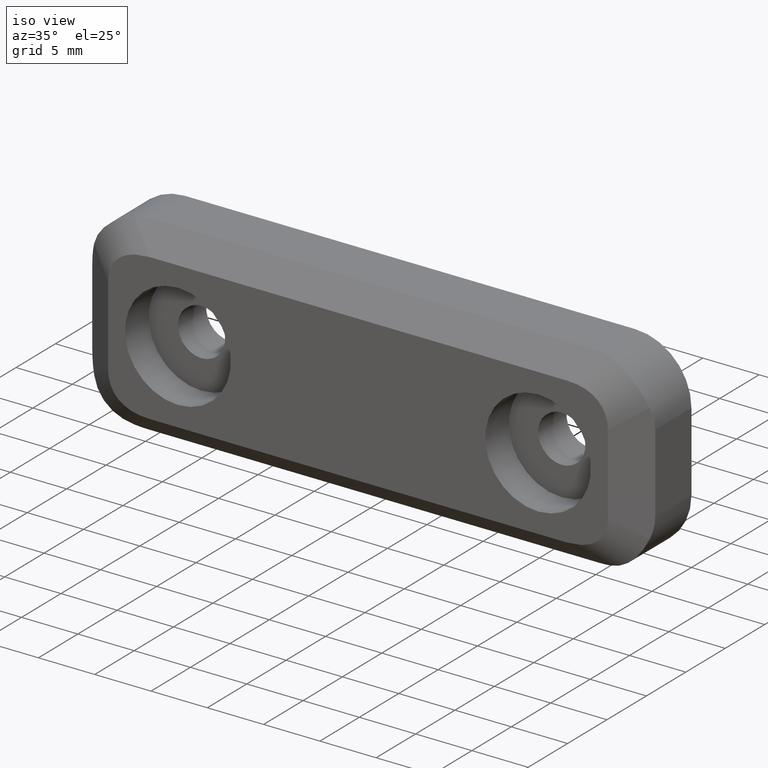
[diagram: clean part render]
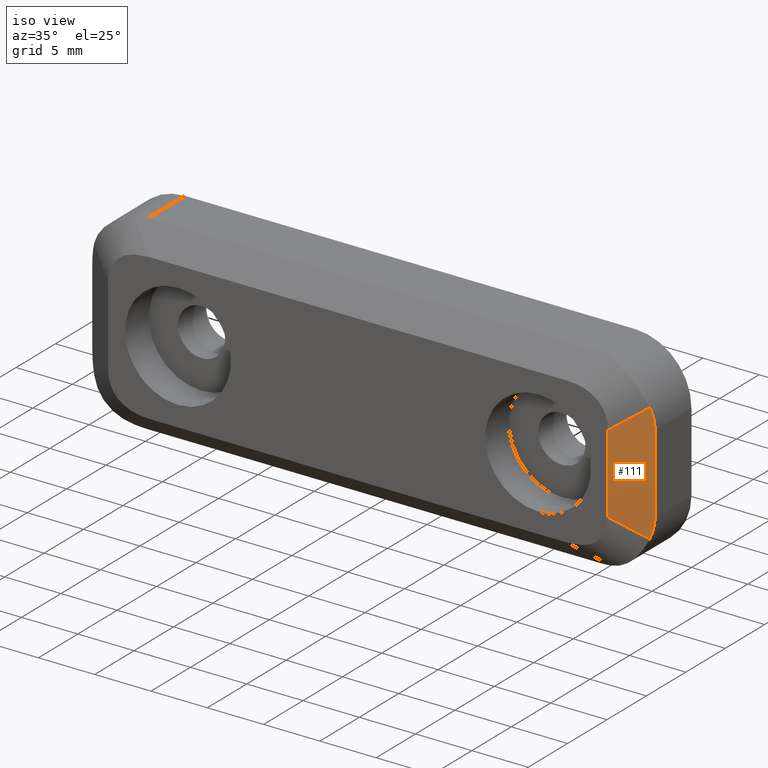
[diagram: same view with one face highlighted and labeled with its STEP entity id]
A machine part, iso view. The second image highlights one B-rep face of the part: STEP entity #111.
In plain terms, the highlighted planar face has unit normal (-0.5812, 0.8137, -0).
Its self-contained STEP definition (entity closure, byte-faithful):
#11 = CARTESIAN_POINT ( 'NONE',  ( 24.89126041866575900, -4.677671129517263700, -4.700837432451878700 ) ) ;
#24 = DIRECTION ( 'NONE',  ( 0.7035264706815158600, 0.5025189076295558700, -0.5025189076295618600 ) ) ;
#56 = CARTESIAN_POINT ( 'NONE',  ( 24.99999999998965400, -4.600000000000089400, -4.105342070638923400 ) ) ;
#57 = CARTESIAN_POINT ( 'NONE',  ( 24.99999999998775000, -4.599999999999999600, 3.500000000001390000 ) ) ;
#76 = EDGE_CURVE ( 'NONE', #871, #277, #289, .T. ) ;
#104 = CARTESIAN_POINT ( 'NONE',  ( 24.99999999999030100, -4.599999999999999600, -6.499999999999749500 ) ) ;
#111 = ADVANCED_FACE ( 'NONE', ( #674 ), #834, .F. ) ;
#139 =( BOUNDED_CURVE ( )  B_SPLINE_CURVE ( 3, ( #206, #11, #56, #246 ),
 .UNSPECIFIED., .F., .F. ) 
 B_SPLINE_CURVE_WITH_KNOTS ( ( 4, 4 ),
 ( 5.921957998915421400, 6.283185307179586200 ),
 .UNSPECIFIED. ) 
 CURVE ( )  GEOMETRIC_REPRESENTATION_ITEM ( )  RATIONAL_B_SPLINE_CURVE ( ( 1.000000000000000000, 0.9891557635425529700, 0.9891557635425529700, 1.000000000000000000 ) ) 
 REPRESENTATION_ITEM ( '' )  );
#198 = EDGE_LOOP ( 'NONE', ( #808, #418, #457, #313, #929, #303 ) ) ;
#201 = VERTEX_POINT ( 'NONE', #513 ) ;
#203 = DIRECTION ( 'NONE',  ( -0.5812381937190909100, 0.8137334712067388900, -1.486334455697556100E-013 ) ) ;
#206 = CARTESIAN_POINT ( 'NONE',  ( 24.67731884921429900, -4.830486536268369800, -5.267113007898930600 ) ) ;
#212 = EDGE_CURVE ( 'NONE', #299, #783, #702, .T. ) ;
#246 = CARTESIAN_POINT ( 'NONE',  ( 24.99999999998949800, -4.599999999999999600, -3.499999999998495000 ) ) ;
#277 = VERTEX_POINT ( 'NONE', #295 ) ;
#289 = LINE ( 'NONE', #699, #921 ) ;
#295 = CARTESIAN_POINT ( 'NONE',  ( 22.19999999998770000, -6.599999999999999600, 3.497599544169085500 ) ) ;
#299 = VERTEX_POINT ( 'NONE', #400 ) ;
#303 = ORIENTED_EDGE ( 'NONE', *, *, #76, .F. ) ;
#313 = ORIENTED_EDGE ( 'NONE', *, *, #549, .T. ) ;
#362 = LINE ( 'NONE', #969, #539 ) ;
#400 = CARTESIAN_POINT ( 'NONE',  ( 24.99999999998775000, -4.599999999999999600, 3.500000000001390000 ) ) ;
#418 = ORIENTED_EDGE ( 'NONE', *, *, #471, .T. ) ;
#437 = CARTESIAN_POINT ( 'NONE',  ( 24.67731884921190000, -4.830486536268180600, 5.267113007900960900 ) ) ;
#457 = ORIENTED_EDGE ( 'NONE', *, *, #212, .F. ) ;
#471 = EDGE_CURVE ( 'NONE', #940, #783, #139, .T. ) ;
#489 = CARTESIAN_POINT ( 'NONE',  ( 24.99999999998755100, -4.600000000000089400, 4.105342070641560400 ) ) ;
#498 = VECTOR ( 'NONE', #809, 1000.000000000000000 ) ;
#501 = DIRECTION ( 'NONE',  ( -0.7035264706813861800, -0.5025189076296462400, -0.5025189076296532300 ) ) ;
#513 = CARTESIAN_POINT ( 'NONE',  ( 24.67731884921190000, -4.830486536268180600, 5.267113007900960900 ) ) ;
#531 = CARTESIAN_POINT ( 'NONE',  ( 22.19999999998859900, -6.599999999999999600, 5.676954004921420400E-012 ) ) ;
#539 = VECTOR ( 'NONE', #24, 1000.000000000000000 ) ;
#543 = DIRECTION ( 'NONE',  ( -2.557186488704650000E-013, -0.0000000000000000000, 1.000000000000000000 ) ) ;
#549 = EDGE_CURVE ( 'NONE', #299, #201, #608, .T. ) ;
#608 =( BOUNDED_CURVE ( )  B_SPLINE_CURVE ( 3, ( #57, #489, #804, #437 ),
 .UNSPECIFIED., .F., .F. ) 
 B_SPLINE_CURVE_WITH_KNOTS ( ( 4, 4 ),
 ( -8.881784197001252300E-016, 0.3612273082640132800 ),
 .UNSPECIFIED. ) 
 CURVE ( )  GEOMETRIC_REPRESENTATION_ITEM ( )  RATIONAL_B_SPLINE_CURVE ( ( 1.000000000000000000, 0.9891557635425618500, 0.9891557635425618500, 1.000000000000000000 ) ) 
 REPRESENTATION_ITEM ( '' )  );
#617 = AXIS2_PLACEMENT_3D ( 'NONE', #531, #203, #966 ) ;
#626 = CARTESIAN_POINT ( 'NONE',  ( 22.19999999998949700, -6.599999999999999600, -3.497599544167255400 ) ) ;
#633 = CARTESIAN_POINT ( 'NONE',  ( 20.96347490861725000, -7.483232208121930500, 2.614367336047164900 ) ) ;
#674 = FACE_OUTER_BOUND ( 'NONE', #198, .T. ) ;
#699 = CARTESIAN_POINT ( 'NONE',  ( 22.19999999998695000, -6.599999999999999600, 6.499999999999370300 ) ) ;
#702 = LINE ( 'NONE', #104, #498 ) ;
#704 = EDGE_CURVE ( 'NONE', #201, #277, #757, .T. ) ;
#757 = LINE ( 'NONE', #633, #775 ) ;
#764 = EDGE_CURVE ( 'NONE', #871, #940, #362, .T. ) ;
#775 = VECTOR ( 'NONE', #501, 999.9999999999998900 ) ;
#783 = VERTEX_POINT ( 'NONE', #876 ) ;
#804 = CARTESIAN_POINT ( 'NONE',  ( 24.89126041866343900, -4.677671129517198900, 4.700837432454216400 ) ) ;
#808 = ORIENTED_EDGE ( 'NONE', *, *, #764, .T. ) ;
#809 = DIRECTION ( 'NONE',  ( 2.557186488704650000E-013, 0.0000000000000000000, -1.000000000000000000 ) ) ;
#834 = PLANE ( 'NONE',  #617 ) ;
#871 = VERTEX_POINT ( 'NONE', #626 ) ;
#876 = CARTESIAN_POINT ( 'NONE',  ( 24.99999999998949800, -4.599999999999999600, -3.499999999998495000 ) ) ;
#898 = CARTESIAN_POINT ( 'NONE',  ( 24.67731884921429900, -4.830486536268369800, -5.267113007898930600 ) ) ;
#921 = VECTOR ( 'NONE', #543, 1000.000000000000000 ) ;
#929 = ORIENTED_EDGE ( 'NONE', *, *, #704, .T. ) ;
#940 = VERTEX_POINT ( 'NONE', #898 ) ;
#966 = DIRECTION ( 'NONE',  ( -0.8137334712067388900, -0.5812381937190909100, 0.0000000000000000000 ) ) ;
#969 = CARTESIAN_POINT ( 'NONE',  ( 20.96347490861479900, -7.483232208124651000, -2.614367336042619600 ) ) ;